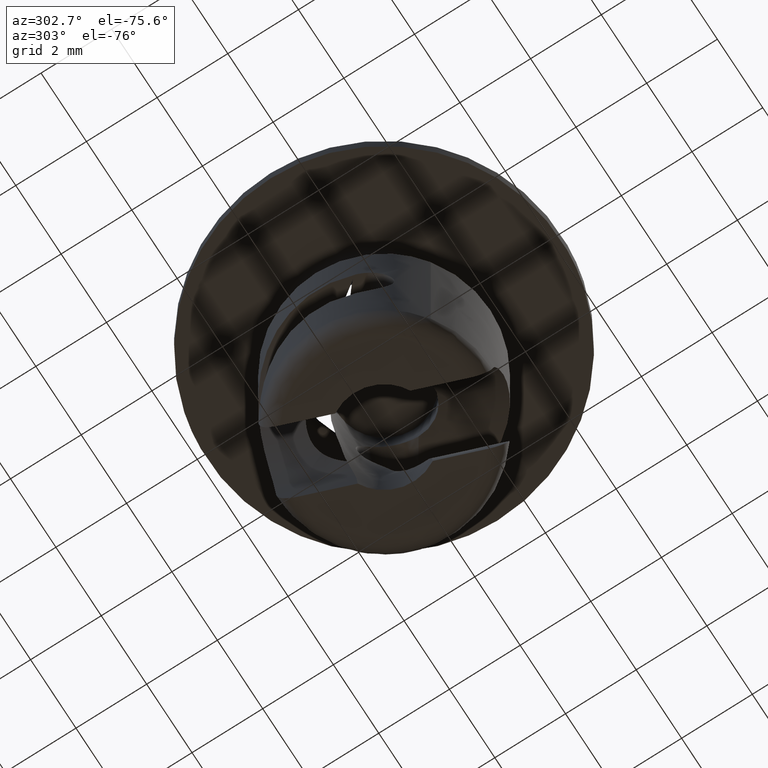
[diagram: clean part render]
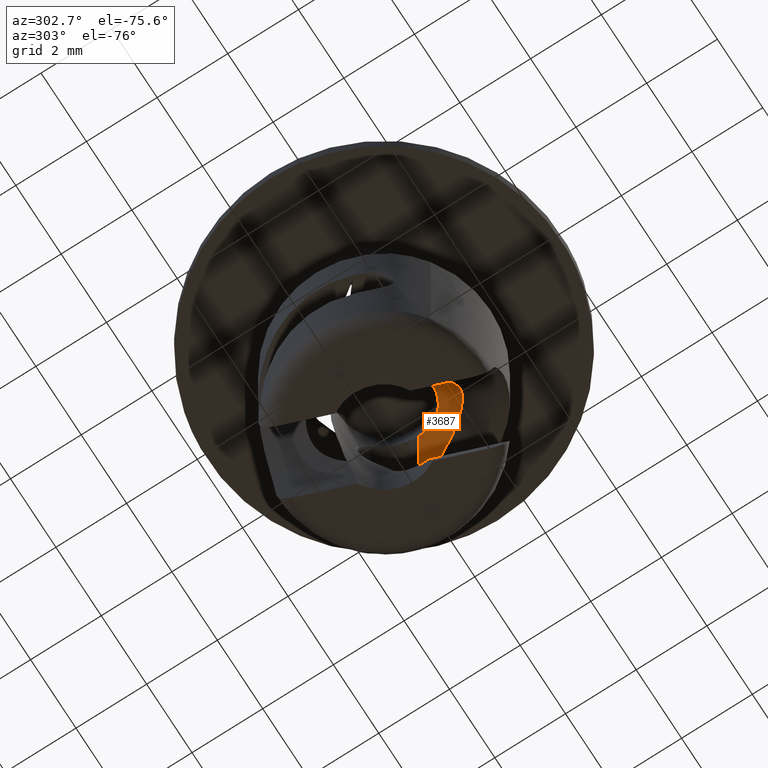
[diagram: same view with one face highlighted and labeled with its STEP entity id]
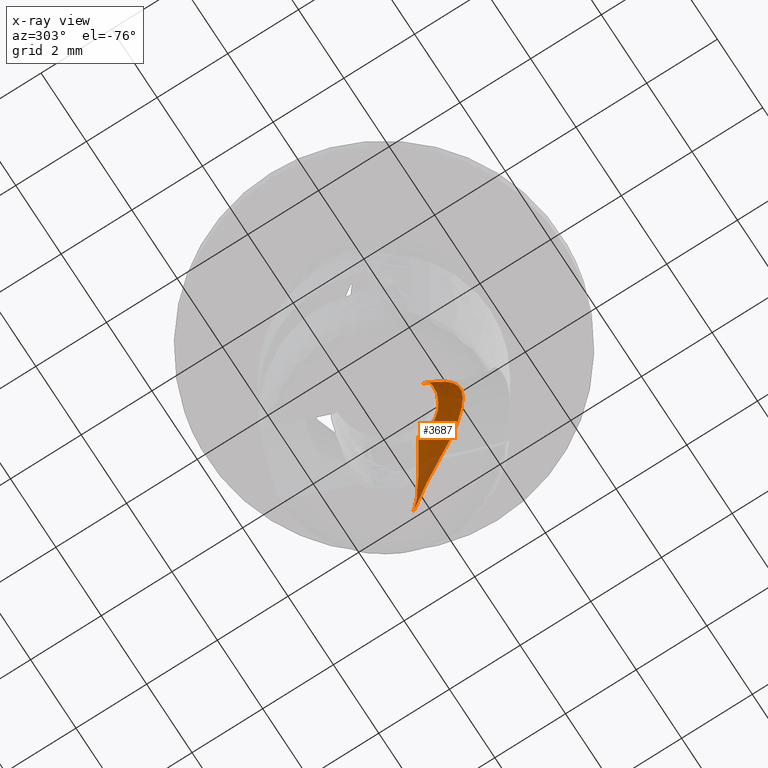
[diagram: x-ray of the same camera — body ghosted, the highlighted face saturated]
A machine part, auxiliary view. The second image highlights one B-rep face of the part: STEP entity #3687.
The next image is the same camera in x-ray: the body ghosted, the highlighted face saturated — about 19% of this face is hidden behind the body in this view.
In plain terms, the highlighted face is a freeform B-spline surface patch.
Its self-contained STEP definition (entity closure, byte-faithful):
#2558=CARTESIAN_POINT('',(2.822162057853670,1.014812978952756,-4.200050929031289));
#2559=VERTEX_POINT('',#2558);
#2587=CARTESIAN_POINT('',(1.291644792121556,-0.147152067553468,-4.411853175296565));
#2588=VERTEX_POINT('',#2587);
#2589=CARTESIAN_POINT('',(2.822162057853670,1.014812978952756,-4.200050929031289));
#2590=CARTESIAN_POINT('',(2.822544535274203,1.010183253697319,-4.200105144417544));
#2591=CARTESIAN_POINT('',(2.822924866683350,0.994493755940249,-4.200335380553874));
#2592=CARTESIAN_POINT('',(2.810060475254839,0.965484328024195,-4.201450070156995));
#2593=CARTESIAN_POINT('',(2.786161122902555,0.927761399851526,-4.203464652495842));
#2594=CARTESIAN_POINT('',(2.749412268735821,0.883725907899019,-4.206559146877041));
#2595=CARTESIAN_POINT('',(2.700811103895332,0.833518324154914,-4.210854701106601));
#2596=CARTESIAN_POINT('',(2.639781785186887,0.777072453181943,-4.216551494101584));
#2597=CARTESIAN_POINT('',(2.566405772235937,0.714488415441131,-4.223825435448411));
#2598=CARTESIAN_POINT('',(2.480569785281876,0.645841960174208,-4.232868451559705));
#2599=CARTESIAN_POINT('',(2.382229405894967,0.571254655989347,-4.243864870354915));
#2600=CARTESIAN_POINT('',(2.271361213483105,0.490801572120842,-4.257036901506421));
#2601=CARTESIAN_POINT('',(2.101342376557814,0.372561945519575,-4.278246175666603));
#2602=CARTESIAN_POINT('',(1.872775457874006,0.219259739541155,-4.310498900312369));
#2603=CARTESIAN_POINT('',(1.586511324851130,0.033596607608622,-4.357110275126406));
#2604=CARTESIAN_POINT('',(1.390752573193026,-0.086400513414391,-4.393453503705969));
#2605=CARTESIAN_POINT('',(1.291644792121556,-0.147152067553468,-4.411853175296565));
#2606=B_SPLINE_CURVE_WITH_KNOTS('',3,(#2589,#2590,#2591,#2592,#2593,#2594,#2595,#2596,#2597,#2598,#2599,#2600,#2601,#2602,#2603,#2604,#2605),.UNSPECIFIED.,.F.,.U.,(4,1,1,1,1,1,1,1,1,1,1,1,1,1,4),(0.005773400592547,0.012830645270503,0.029841114663945,0.052521111681365,0.081498757434691,0.117070108793561,0.159393074346630,0.208560553137082,0.264631433230616,0.327645250461281,0.397629774075710,0.474605228688582,0.645290540669114,0.820419433912496,1.0),.UNSPECIFIED.);
#2607=EDGE_CURVE('',#2559,#2588,#2606,.T.);
#3196=CARTESIAN_POINT('',(0.724452422645916,-1.079336986589249,-5.155714374995931));
#3197=VERTEX_POINT('',#3196);
#3198=CARTESIAN_POINT('',(1.291644792121556,-0.147152067553468,-4.411853175296565));
#3199=CARTESIAN_POINT('',(1.285255988540378,-0.203151388212742,-4.453952309236923));
#3200=CARTESIAN_POINT('',(1.264917965516132,-0.315723784731141,-4.530123872379724));
#3201=CARTESIAN_POINT('',(1.227036877015511,-0.433690974390569,-4.604330388221987));
#3202=CARTESIAN_POINT('',(1.181716773609591,-0.545227929999719,-4.677085910068354));
#3203=CARTESIAN_POINT('',(1.128255578037026,-0.653419584258155,-4.749800021751663));
#3204=CARTESIAN_POINT('',(1.061704052892006,-0.752596570871416,-4.824532736303777));
#3205=CARTESIAN_POINT('',(0.982082238930449,-0.854797841833540,-4.909148006872909));
#3206=CARTESIAN_POINT('',(0.884828413540875,-0.959520503408708,-5.006089904194926));
#3207=CARTESIAN_POINT('',(0.779944487036189,-1.042070364294377,-5.104192411732283));
#3208=CARTESIAN_POINT('',(0.724452422645916,-1.079336986589249,-5.155714374995931));
#3209=B_SPLINE_CURVE_WITH_KNOTS('',3,(#3198,#3199,#3200,#3201,#3202,#3203,#3204,#3205,#3206,#3207,#3208),.UNSPECIFIED.,.F.,.U.,(4,1,1,1,1,1,1,1,4),(0.000000802619304,0.210999902921679,0.411446348828273,0.432551506102654,0.632997900094447,0.833444046811063,0.854548827491208,1.097195886919564,1.350394767768398),.UNSPECIFIED.);
#3210=EDGE_CURVE('',#2588,#3197,#3209,.T.);
#3242=CARTESIAN_POINT('',(-0.327049785134139,-1.258188554249210,-7.000983525736630));
#3243=VERTEX_POINT('',#3242);
#3244=CARTESIAN_POINT('',(0.724452422645916,-1.079336986589249,-5.155714374995931));
#3245=CARTESIAN_POINT('',(0.652248626648143,-1.127828618076427,-5.222744040419879));
#3246=CARTESIAN_POINT('',(0.572812802228352,-1.170166807407923,-5.295852404698867));
#3247=CARTESIAN_POINT('',(0.387681182695183,-1.246255143612238,-5.470788151511221));
#3248=CARTESIAN_POINT('',(0.272845673499136,-1.275078385135548,-5.582535445386843));
#3249=CARTESIAN_POINT('',(0.169615519696059,-1.288945555976938,-5.702657938858311));
#3250=CARTESIAN_POINT('',(0.162188849968716,-1.289873832871255,-5.711456288190411));
#3251=CARTESIAN_POINT('',(0.156586545706160,-1.290599888165870,-5.718032549654714));
#3252=CARTESIAN_POINT('',(0.151080426838525,-1.291223019834187,-5.724699910770882));
#3253=CARTESIAN_POINT('',(0.145522667143668,-1.291899221374913,-5.731319026918575));
#3254=CARTESIAN_POINT('',(0.140072736872439,-1.292469592524467,-5.738036965737002));
#3255=CARTESIAN_POINT('',(0.134567097473037,-1.293092316611828,-5.744704514121291));
#3256=CARTESIAN_POINT('',(0.129176269763750,-1.293611853154179,-5.751473937168012));
#3257=CARTESIAN_POINT('',(0.125545785746573,-1.293989528097040,-5.755956382633302));
#3258=CARTESIAN_POINT('',(0.093211942459187,-1.297113416100562,-5.796562670392708));
#3259=CARTESIAN_POINT('',(0.050534465879778,-1.299588666525173,-5.854937489551366));
#3260=CARTESIAN_POINT('',(0.000972503296553,-1.300240726555283,-5.936445112847322));
#3261=CARTESIAN_POINT('',(-0.034191734797494,-1.299758094405635,-6.002868907303972));
#3262=CARTESIAN_POINT('',(-0.068180634285577,-1.298351494710443,-6.079530630130135));
#3263=CARTESIAN_POINT('',(-0.097619060382677,-1.296538293097976,-6.164176234293460));
#3264=CARTESIAN_POINT('',(-0.128554915343449,-1.294007185711818,-6.272538470446599));
#3265=CARTESIAN_POINT('',(-0.149422281062062,-1.291641899710363,-6.362625098923046));
#3266=CARTESIAN_POINT('',(-0.166822520537777,-1.289368287572987,-6.441596142228756));
#3267=CARTESIAN_POINT('',(-0.174230947090937,-1.288299518865823,-6.475459299840922));
#3268=CARTESIAN_POINT('',(-0.180395037482850,-1.287459902643026,-6.503676446447785));
#3269=CARTESIAN_POINT('',(-0.184188618471433,-1.286898025717503,-6.520583913791374));
#3270=CARTESIAN_POINT('',(-0.186680381469240,-1.286540566409352,-6.531870415109726));
#3271=CARTESIAN_POINT('',(-0.208260446978430,-1.283378013753181,-6.627619796200289));
#3272=CARTESIAN_POINT('',(-0.247132209365877,-1.277316567035159,-6.784787379859122));
#3273=CARTESIAN_POINT('',(-0.300658782846315,-1.265055098209765,-6.937211292205453));
#3274=CARTESIAN_POINT('',(-0.327049785134139,-1.258188554249210,-7.000983525736630));
#3275=B_SPLINE_CURVE_WITH_KNOTS('',3,(#3244,#3245,#3246,#3247,#3248,#3249,#3250,#3251,#3252,#3253,#3254,#3255,#3256,#3257,#3258,#3259,#3260,#3261,#3262,#3263,#3264,#3265,#3266,#3267,#3268,#3269,#3270,#3271,#3272,#3273,#3274),.UNSPECIFIED.,.F.,.U.,(4,1,1,1,1,1,1,1,1,1,1,1,2,1,1,1,1,1,1,1,1,1,1,1,2,1,4),(-0.000005996184826,0.329400048631281,0.346738669322345,0.797507646251435,0.814846370533838,0.823515701819274,0.832185033104712,0.840854274706656,0.849523516308602,0.858192618703708,0.866861721098814,0.875530646914037,0.884199572729261,1.031560290545053,1.100905684165446,1.170252671160929,1.256937379208095,1.352297641414904,1.438984366770011,1.595021427619642,1.629701400913200,1.681715004344834,1.699052872155378,1.716389183182593,1.733725494209809,2.011113734361799,2.219160752216289),.UNSPECIFIED.);
#3276=EDGE_CURVE('',#3197,#3243,#3275,.T.);
#3550=CARTESIAN_POINT('',(-0.360811587678061,-1.200429287167339,-7.035488937347242));
#3551=CARTESIAN_POINT('',(-0.273723338980755,-0.393247981651650,-5.989021061285132));
#3552=CARTESIAN_POINT('',(-1.430846093802808,-1.027182324738334,-5.863601224927385));
#3553=CARTESIAN_POINT('',(-0.320433033528272,-1.271143351904013,-6.995262370266467));
#3554=CARTESIAN_POINT('',(-0.254818362728479,-0.410318330727274,-5.988735656376146));
#3555=CARTESIAN_POINT('',(-1.401832115945595,-1.057090533809951,-5.840007167501337));
#3556=CARTESIAN_POINT('',(-0.279763691191001,-1.336552948209584,-6.950916522149323));
#3557=CARTESIAN_POINT('',(-0.235556947629153,-0.426815206266807,-5.988967923900463));
#3558=CARTESIAN_POINT('',(-1.371180993799086,-1.083940208772297,-5.813997323740310));
#3559=CARTESIAN_POINT('',(-0.115555537574681,-1.574702033099850,-6.758995540142170));
#3560=CARTESIAN_POINT('',(-0.158527230985173,-0.493774201370588,-5.992744831849678));
#3561=CARTESIAN_POINT('',(-1.241066740585886,-1.177700527548318,-5.701442129415410));
#3562=CARTESIAN_POINT('',(0.009770058574336,-1.695740981577105,-6.585588628295779));
#3563=CARTESIAN_POINT('',(-0.100349789201839,-0.552810322929190,-5.998370010869292));
#3564=CARTESIAN_POINT('',(-1.126844762102020,-1.215068444916762,-5.599744892171780));
#3565=CARTESIAN_POINT('',(0.364746024883104,-1.894719447945225,-6.087130051428111));
#3566=CARTESIAN_POINT('',(0.084928925791351,-0.746930380939650,-5.939023159172421));
#3567=CARTESIAN_POINT('',(-0.767976871433953,-1.239904278691344,-5.307415725900570));
#3568=CARTESIAN_POINT('',(0.573870583110247,-1.832792871726970,-5.794142730328070));
#3569=CARTESIAN_POINT('',(0.234309028180321,-0.857844881453180,-5.786031970522714));
#3570=CARTESIAN_POINT('',(-0.512546484808414,-1.153656235686666,-5.135588636480680));
#3571=CARTESIAN_POINT('',(0.932562036280390,-1.640365805008275,-5.350029305799049));
#3572=CARTESIAN_POINT('',(0.544908132281772,-0.903114362993684,-5.465898239542907));
#3573=CARTESIAN_POINT('',(-0.053251392829223,-0.957177552671285,-4.875131118225951));
#3574=CARTESIAN_POINT('',(1.083643604180864,-1.505744076370435,-5.186728160059330));
#3575=CARTESIAN_POINT('',(0.699166815225566,-0.863091848278194,-5.307719188205319));
#3576=CARTESIAN_POINT('',(0.153365925624589,-0.844254358006298,-4.779360532951980));
#3577=CARTESIAN_POINT('',(1.366990758206478,-1.221329574163848,-4.910750690757610));
#3578=CARTESIAN_POINT('',(1.001845780021665,-0.731493661038354,-5.030470993457003));
#3579=CARTESIAN_POINT('',(0.548714106486071,-0.614487655169977,-4.617509083000551));
#3580=CARTESIAN_POINT('',(1.495649169135286,-1.076707291013862,-4.803626332104360));
#3581=CARTESIAN_POINT('',(1.145401414692060,-0.642618462097581,-4.913135294183517));
#3582=CARTESIAN_POINT('',(0.727542979223666,-0.500093754361379,-4.553971168377320));
#3583=CARTESIAN_POINT('',(1.849421524968545,-0.600184962101570,-4.531458847975159));
#3584=CARTESIAN_POINT('',(1.573695298447991,-0.327328916598271,-4.602009127784539));
#3585=CARTESIAN_POINT('',(1.278536670157280,-0.153022133817802,-4.398963936132955));
#3586=CARTESIAN_POINT('',(2.039306234105935,-0.246932944929817,-4.419755766664815));
#3587=CARTESIAN_POINT('',(1.846881211115978,-0.062713115663407,-4.457730788719480));
#3588=CARTESIAN_POINT('',(1.645111855073715,0.072583561669903,-4.340812870497966));
#3589=CARTESIAN_POINT('',(2.333429101725876,0.244906072326365,-4.299530619981620));
#3590=CARTESIAN_POINT('',(2.240676998650820,0.330006297599907,-4.312169977456657));
#3591=CARTESIAN_POINT('',(2.146056186178255,0.403758607110093,-4.271156438163946));
#3592=CARTESIAN_POINT('',(2.433716974742455,0.405122689761157,-4.267876446934976));
#3593=CARTESIAN_POINT('',(2.370805483054451,0.462539037178126,-4.274996749244107));
#3594=CARTESIAN_POINT('',(2.306987235895040,0.514369336217451,-4.251439237491465));
#3595=CARTESIAN_POINT('',(2.590923734166660,0.635771338230867,-4.232487952775860));
#3596=CARTESIAN_POINT('',(2.561492292846721,0.662042999299309,-4.234926180444347));
#3597=CARTESIAN_POINT('',(2.531846719867070,0.686970034669051,-4.226903322535505));
#3598=CARTESIAN_POINT('',(2.644667314552345,0.710964048233134,-4.222715271960031));
#3599=CARTESIAN_POINT('',(2.624537774907990,0.728583396139683,-4.224168859342366));
#3600=CARTESIAN_POINT('',(2.604294213692085,0.745529160636386,-4.219577975258470));
#3601=CARTESIAN_POINT('',(2.724877702338565,0.823414487048703,-4.211264012334175));
#3602=CARTESIAN_POINT('',(2.715195318570512,0.831334133306462,-4.211828324475000));
#3603=CARTESIAN_POINT('',(2.705478449860755,0.839083369572527,-4.210282146017461));
#3604=CARTESIAN_POINT('',(2.751728125673480,0.860752378013686,-4.207977502475879));
#3605=CARTESIAN_POINT('',(2.744945064357561,0.865984101372970,-4.208342283953034));
#3606=CARTESIAN_POINT('',(2.738141715523265,0.871128436455276,-4.207463632134385));
#3607=CARTESIAN_POINT('',(2.801091884794860,0.938279156066909,-4.202617115434721));
#3608=CARTESIAN_POINT('',(2.798783507610636,0.939527493046103,-4.202717535271563));
#3609=CARTESIAN_POINT('',(2.796471822383565,0.940773550699689,-4.202626195855160));
#3610=CARTESIAN_POINT('',(2.839055917698577,0.980166364543410,-4.199825905189148));
#3611=CARTESIAN_POINT('',(2.835283362134168,0.981524095502314,-4.199957556034611));
#3612=CARTESIAN_POINT('',(2.831506718009982,0.982880849336711,-4.199880226397156));
#3613=CARTESIAN_POINT('',(2.822104617483462,1.024424102410212,-4.199868319219354));
#3614=CARTESIAN_POINT('',(2.819077636767267,1.026061049781358,-4.200000000000000));
#3615=CARTESIAN_POINT('',(2.816046318206302,1.027695008267192,-4.199880226397156));
#3623=(BOUNDED_SURFACE()B_SPLINE_SURFACE(2,3,((#3550,#3553,#3556,#3559,#3562,#3565,#3568,#3571,#3574,#3577,#3580,#3583,#3586,#3589,#3592,#3595,#3598,#3601,#3604,#3607,#3610,#3613),(#3551,#3554,#3557,#3560,#3563,#3566,#3569,#3572,#3575,#3578,#3581,#3584,#3587,#3590,#3593,#3596,#3599,#3602,#3605,#3608,#3611,#3614),(#3552,#3555,#3558,#3561,#3564,#3567,#3570,#3573,#3576,#3579,#3582,#3585,#3588,#3591,#3594,#3597,#3600,#3603,#3606,#3609,#3612,#3615)),.UNSPECIFIED.,.F.,.F.,.U.)B_SPLINE_SURFACE_WITH_KNOTS((3,3),(4,2,2,2,2,2,2,2,2,2,4),(0.0,1.0),(0.0,0.272473392413326,1.101577320145586,2.759785175610101,4.417993031074619,6.076200886539136,9.392616597468173,11.050824452932680,11.879928380664950,12.294480344531079,12.709032308397211),.UNSPECIFIED.)GEOMETRIC_REPRESENTATION_ITEM()RATIONAL_B_SPLINE_SURFACE(((1.0,1.0,1.0,1.0,1.0,1.0,1.0,1.0,1.0,1.0,1.0,1.0,1.0,1.0,1.0,1.0,1.0,1.0,1.0,1.0,1.0,1.0),(0.602325798500317,0.602471609831173,0.602939794937042,0.606891159506805,0.615216078685568,0.654859698593055,0.696541048570300,0.766778601355552,0.797018067170585,0.849420461272713,0.871222146101592,0.925749615372100,0.948106826439795,0.974089089310149,0.981383346847588,0.990254294792883,0.992862774571615,0.996119640669575,0.997096773366395,0.998757603669744,0.999525689484468,0.999642180907288),(1.0,1.0,1.0,1.0,1.0,1.0,1.0,1.0,1.0,1.0,1.0,1.0,1.0,1.0,1.0,1.0,1.0,1.0,1.0,1.0,1.0,1.0)))REPRESENTATION_ITEM('')SURFACE());
#3624=ORIENTED_EDGE('',*,*,#3276,.F.);
#3625=ORIENTED_EDGE('',*,*,#3210,.F.);
#3626=ORIENTED_EDGE('',*,*,#2607,.F.);
#3627=CARTESIAN_POINT('',(-0.327049785134139,-1.258188554249210,-7.000983525736630));
#3628=CARTESIAN_POINT('',(-0.270577416941164,-1.352762704521477,-6.942069536857758));
#3629=CARTESIAN_POINT('',(-0.189982671026020,-1.470638385966823,-6.847266127011165));
#3630=CARTESIAN_POINT('',(-0.056947940402936,-1.622592954833551,-6.675352977215143));
#3631=CARTESIAN_POINT('',(0.020645800540132,-1.691445487593823,-6.569474823586870));
#3632=CARTESIAN_POINT('',(0.180389240364872,-1.801636178007352,-6.346904736398581));
#3633=CARTESIAN_POINT('',(0.298449269413627,-1.839935512845407,-6.179782659642581));
#3634=CARTESIAN_POINT('',(0.442769555134738,-1.836892443473646,-5.980470358104771));
#3635=CARTESIAN_POINT('',(0.523124791266632,-1.828458325457190,-5.870544092494207));
#3636=CARTESIAN_POINT('',(0.660178263719384,-1.787592526745794,-5.688534728670058));
#3637=CARTESIAN_POINT('',(0.772504165370122,-1.728431590476695,-5.547456573868036));
#3638=CARTESIAN_POINT('',(0.877892369582156,-1.661240080806521,-5.420842381537788));
#3639=CARTESIAN_POINT('',(0.929695654555215,-1.624940438718457,-5.360892238603054));
#3640=CARTESIAN_POINT('',(1.017336689837179,-1.557299518280569,-5.263195190363438));
#3641=CARTESIAN_POINT('',(1.106220351817423,-1.480747729316361,-5.167228011769800));
#3642=CARTESIAN_POINT('',(1.198546489511213,-1.390533108854841,-5.074216734948382));
#3643=CARTESIAN_POINT('',(1.331082353456900,-1.256880300443037,-4.947111306913085));
#3644=CARTESIAN_POINT('',(1.467599936633807,-1.107393183638353,-4.827370353959060));
#3645=CARTESIAN_POINT('',(1.593411134003383,-0.946183238997760,-4.728057362172438));
#3646=CARTESIAN_POINT('',(1.678585855888337,-0.828487773761947,-4.663423047825600));
#3647=CARTESIAN_POINT('',(1.720485639337596,-0.763626697658396,-4.632051707928852));
#3648=CARTESIAN_POINT('',(1.758829575098302,-0.704294879966963,-4.604886448493812));
#3649=CARTESIAN_POINT('',(1.846733505223685,-0.567314161543761,-4.542803245462141));
#3650=CARTESIAN_POINT('',(1.929242118141396,-0.423192916203556,-4.489639129288321));
#3651=CARTESIAN_POINT('',(2.020377241260431,-0.273904245205267,-4.440502233717053));
#3652=CARTESIAN_POINT('',(2.054618430959327,-0.217862155066250,-4.422303461751151));
#3653=CARTESIAN_POINT('',(2.087841577076973,-0.160828365783901,-4.405332092865268));
#3654=CARTESIAN_POINT('',(2.122228667303824,-0.104304048391345,-4.389032509731491));
#3655=CARTESIAN_POINT('',(2.179628888130279,-0.010045234257543,-4.362219566083296));
#3656=CARTESIAN_POINT('',(2.236013077174795,0.085606145337049,-4.338204900689633));
#3657=CARTESIAN_POINT('',(2.321894349550402,0.224700625385166,-4.306231027300483));
#3658=CARTESIAN_POINT('',(2.360698647663142,0.288342602717362,-4.292896399810048));
#3659=CARTESIAN_POINT('',(2.400767728338468,0.351388418582264,-4.280552320289616));
#3660=CARTESIAN_POINT('',(2.481420432725055,0.477225690658352,-4.256313439422197));
#3661=CARTESIAN_POINT('',(2.564883303108531,0.602176072133192,-4.236672652916399));
#3662=CARTESIAN_POINT('',(2.648589167589642,0.718345512105449,-4.222673145736115));
#3663=CARTESIAN_POINT('',(2.679317886226802,0.761227139629572,-4.217624917118282));
#3664=CARTESIAN_POINT('',(2.709637112136671,0.804485990324856,-4.213203317095369));
#3665=CARTESIAN_POINT('',(2.749300703825617,0.864278755649698,-4.208137672030687));
#3666=CARTESIAN_POINT('',(2.767075855623969,0.893271554323124,-4.205970964085225));
#3667=CARTESIAN_POINT('',(2.782843346253828,0.919065467907139,-4.204207303184925));
#3668=CARTESIAN_POINT('',(2.790267667581631,0.931138733284746,-4.203386962421705));
#3669=CARTESIAN_POINT('',(2.795154375030696,0.939226395011598,-4.202880992156398));
#3670=CARTESIAN_POINT('',(2.798616582327560,0.944863665710754,-4.202519532795523));
#3671=CARTESIAN_POINT('',(2.801842149663282,0.949531038194018,-4.202271833522951));
#3672=CARTESIAN_POINT('',(2.803972499132344,0.952657202998022,-4.202102588242487));
#3673=CARTESIAN_POINT('',(2.807176354518102,0.957334771125340,-4.201852846595423));
#3674=CARTESIAN_POINT('',(2.810149784751203,0.962180703803824,-4.201617339938457));
#3675=CARTESIAN_POINT('',(2.812475505019364,0.967358526148379,-4.201378392660828));
#3676=CARTESIAN_POINT('',(2.814068174775338,0.970788720183768,-4.201225768371764));
#3677=CARTESIAN_POINT('',(2.816672483679008,0.976876482605119,-4.200973008394098));
#3678=CARTESIAN_POINT('',(2.819949338675799,0.985773903221625,-4.200650647002845));
#3679=CARTESIAN_POINT('',(2.823071909470075,0.999650207948287,-4.200266865738302));
#3680=CARTESIAN_POINT('',(2.823192288757743,1.009215051108204,-4.200102187380214));
#3681=CARTESIAN_POINT('',(2.822162057853670,1.014812978952756,-4.200050929031289));
#3682=B_SPLINE_CURVE_WITH_KNOTS('',3,(#3627,#3628,#3629,#3630,#3631,#3632,#3633,#3634,#3635,#3636,#3637,#3638,#3639,#3640,#3641,#3642,#3643,#3644,#3645,#3646,#3647,#3648,#3649,#3650,#3651,#3652,#3653,#3654,#3655,#3656,#3657,#3658,#3659,#3660,#3661,#3662,#3663,#3664,#3665,#3666,#3667,#3668,#3669,#3670,#3671,#3672,#3673,#3674,#3675,#3676,#3677,#3678,#3679,#3680,#3681),.UNSPECIFIED.,.F.,.U.,(4,1,1,1,1,1,1,1,1,1,1,1,1,1,1,1,1,1,1,1,2,1,1,1,1,1,1,1,1,1,1,1,1,2,1,1,1,1,1,1,1,1,1,1,1,1,1,1,1,1,4),(-0.001754846668301,0.373138035220602,0.509462639231271,0.793471995588847,0.816192642910471,1.395571189674969,1.406932300768889,1.554616500459796,1.804544388937338,2.099914225951181,2.122634751126948,2.338481370992850,2.361202446676984,2.565688565669507,2.792895675950754,2.838336726459516,3.247309342111116,3.497236781769923,3.519957843284392,3.724444216645445,3.747164807199303,4.247020463747999,4.269741124685212,4.292461586714087,4.451506481859465,4.474227139311023,4.496947833990943,4.792317014595858,4.815037692829242,4.996803277044637,5.019523952675969,5.042244684252821,5.451217285351456,5.473938101169588,5.610262229273068,5.632982875673911,5.689784641015113,5.712505292500874,5.723865519111242,5.732387510226214,5.740903338893147,5.743744043855678,5.749425453780747,5.752266158743281,5.760783878698671,5.766457028585018,5.769298328896325,5.772143692867592,5.786348366217716,5.797709722965887,5.814749679495369),.UNSPECIFIED.);
#3683=EDGE_CURVE('',#3243,#2559,#3682,.T.);
#3684=ORIENTED_EDGE('',*,*,#3683,.F.);
#3685=EDGE_LOOP('',(#3624,#3625,#3626,#3684));
#3686=FACE_OUTER_BOUND('',#3685,.T.);
#3687=ADVANCED_FACE('',(#3686),#3623,.T.);